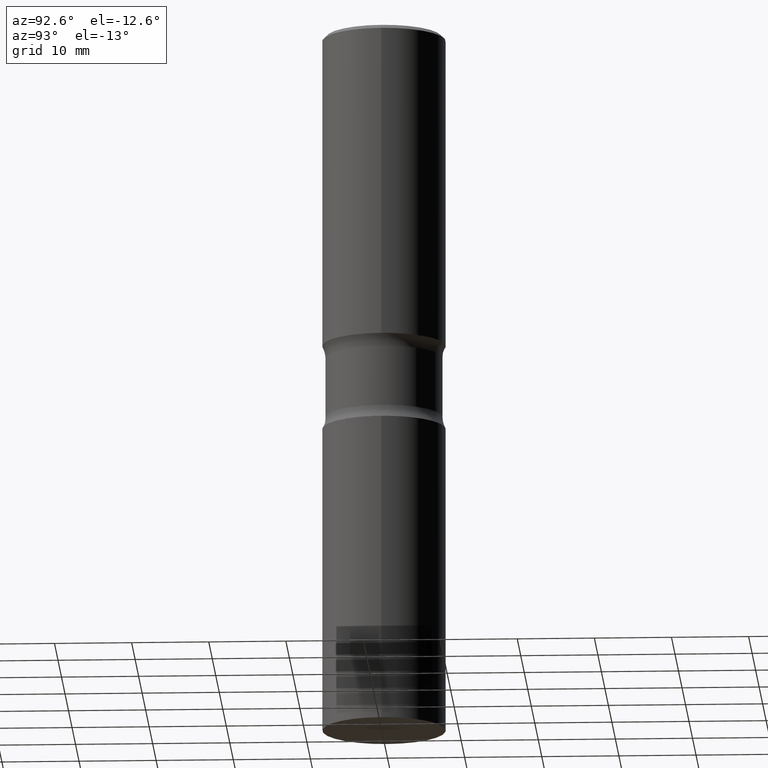
[diagram: clean part render]
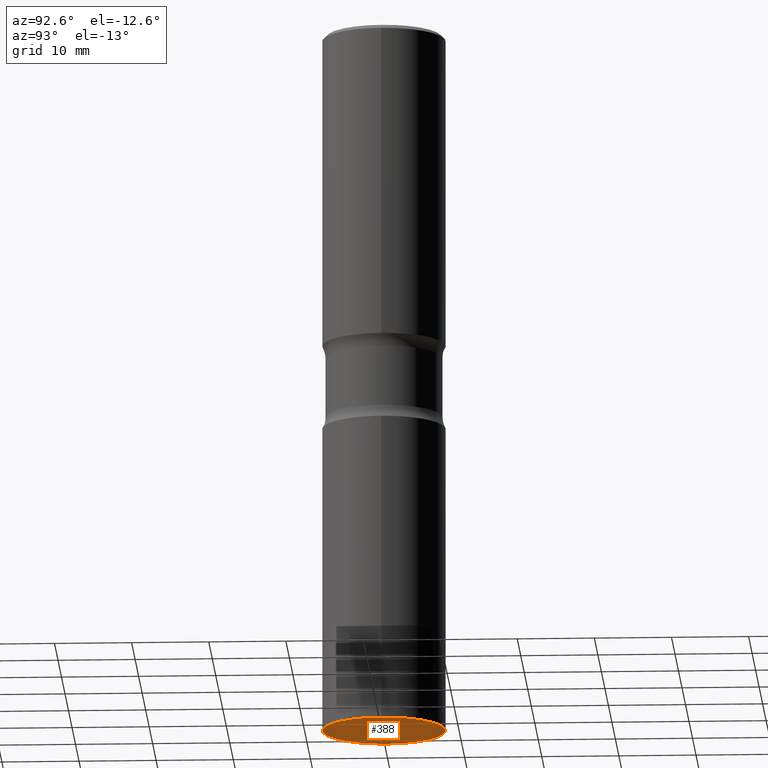
[diagram: same view with one face highlighted and labeled with its STEP entity id]
A machine part, auxiliary view. The second image highlights one B-rep face of the part: STEP entity #388.
In plain terms, the highlighted planar face has unit normal (0, -0, -1).
Its self-contained STEP definition (entity closure, byte-faithful):
#30 = CARTESIAN_POINT ( 'NONE',  ( 8.857488016002564476E-29, -1.264614540928987199E-14, -3.621999999999999886 ) ) ;
#33 = EDGE_CURVE ( 'NONE', #200, #486, #467, .T. ) ;
#60 = DIRECTION ( 'NONE',  ( 2.438088387897960049E-29, -3.491481338843145188E-15, -1.000000000000000000 ) ) ;
#99 = DIRECTION ( 'NONE',  ( -2.445468806185136597E-29, 3.491481338843145583E-15, 1.000000000000000000 ) ) ;
#113 = AXIS2_PLACEMENT_3D ( 'NONE', #326, #60, #206 ) ;
#137 = DIRECTION ( 'NONE',  ( -2.445468806185136597E-29, 3.491481338843145583E-15, 1.000000000000000000 ) ) ;
#144 = DIRECTION ( 'NONE',  ( 1.000000000000000000, -6.982962677686263555E-15, 0.000000000000000000 ) ) ;
#151 = EDGE_CURVE ( 'NONE', #486, #200, #385, .T. ) ;
#159 = AXIS2_PLACEMENT_3D ( 'NONE', #444, #137, #173 ) ;
#173 = DIRECTION ( 'NONE',  ( 1.000000000000000000, -6.982962677686263555E-15, 0.000000000000000000 ) ) ;
#200 = VERTEX_POINT ( 'NONE', #361 ) ;
#206 = DIRECTION ( 'NONE',  ( -1.000000000000000000, 6.982962677686265922E-15, -4.876176775795935793E-29 ) ) ;
#248 = AXIS2_PLACEMENT_3D ( 'NONE', #30, #99, #144 ) ;
#325 = ORIENTED_EDGE ( 'NONE', *, *, #33, .F. ) ;
#326 = CARTESIAN_POINT ( 'NONE',  ( 8.857488016002564476E-29, -1.264614540928987199E-14, -3.621999999999999886 ) ) ;
#333 = FACE_OUTER_BOUND ( 'NONE', #443, .T. ) ;
#339 = CARTESIAN_POINT ( 'NONE',  ( 0.3149500000000000077, -1.484542950462716186E-14, -3.621999999999999886 ) ) ;
#361 = CARTESIAN_POINT ( 'NONE',  ( -0.3149500000000000077, -7.659098656808344900E-15, -3.621999999999999886 ) ) ;
#385 = CIRCLE ( 'NONE', #159, 0.3149500000000000077 ) ;
#388 = ADVANCED_FACE ( 'NONE', ( #333 ), #491, .T. ) ;
#443 = EDGE_LOOP ( 'NONE', ( #476, #325 ) ) ;
#444 = CARTESIAN_POINT ( 'NONE',  ( 8.857488016002564476E-29, -1.264614540928987199E-14, -3.621999999999999886 ) ) ;
#467 = CIRCLE ( 'NONE', #248, 0.3149500000000000077 ) ;
#476 = ORIENTED_EDGE ( 'NONE', *, *, #151, .F. ) ;
#486 = VERTEX_POINT ( 'NONE', #339 ) ;
#491 = PLANE ( 'NONE',  #113 ) ;